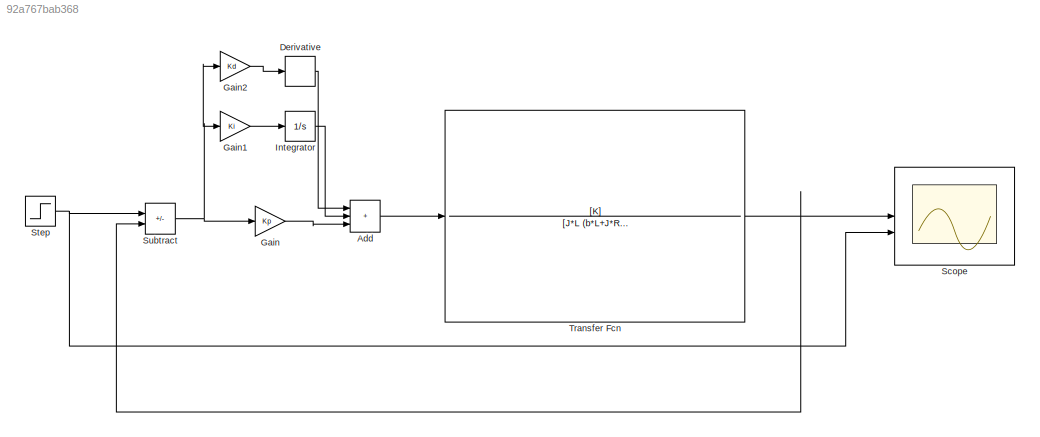
MODEL slx_92a767bab368
KIND model
CONFIG AbsTol = auto
CONFIG EnableMultiTasking = on
CONFIG FixedStep = 0.002
CONFIG MaxStep = auto
CONFIG MinStep = auto
CONFIG RelTol = 1e-3
CONFIG SampleTimeConstraint = Unconstrained
CONFIG SolverName = VariableStepAuto
CONFIG StartTime = 0.0
CONFIG StopTime = 0.35
WORKSPACE source: mxarray member
WORKSPACE J = 3.2284e-06
WORKSPACE K = 0.0274
WORKSPACE Kd = 0.0025
WORKSPACE Ki = 1.68
WORKSPACE Kp = 0.461
WORKSPACE L = 2.75e-06
WORKSPACE R = 4
WORKSPACE b = 3.5077e-06
BLOCK [Sum] Add
  IconShape = rectangular
  Inputs = +++
BLOCK [Derivative] Derivative
BLOCK [Gain] Gain
  Gain = Kp
BLOCK [Gain] Gain1
  Gain = Ki
BLOCK [Gain] Gain2
  Gain = Kd
BLOCK [Integrator] Integrator
BLOCK [Scope] Scope
  Floating = off
  NumInputPorts = 2
  ScopeSpecificationString = Simulink.scopes.TimeScopeBlockCfg('CurrentConfiguration', extmgr.ConfigurationSet(extmgr.Configuration('Core','General UI',true),extmgr.Configuration('Core','Source UI',true),extmgr.Configuration('Sources','WiredSimulink',true),extmgr.Configuration('Visuals','Time Domain',true,'SerializedDisplays',{struct('MinYLimReal','-7.5','MaxYLimReal','67.5','YLabelReal','','MinYLimMag','0.00000','MaxYLimMag'...<+1396ch>
BLOCK [Step] Step
  After = 60
  SampleTime = 0
  Time = 0.01
BLOCK [Sum] Subtract
  IconShape = rectangular
  Inputs = +-
BLOCK [TransferFcn] Transfer Fcn
  Denominator = [J*L (b*L+J*R) (K^2+b*R)]
  Numerator = [K]
LINE Add:1 -> Transfer Fcn:1
LINE Derivative:1 -> Add:1
LINE Gain1:1 -> Integrator:1
LINE Gain2:1 -> Derivative:1
LINE Gain:1 -> Add:3
LINE Integrator:1 -> Add:2
NET Step:1 -> Scope:2, Subtract:1
NET Subtract:1 -> Gain1:1, Gain2:1, Gain:1
NET Transfer Fcn:1 -> Scope:1, Subtract:2
note: NET lines group one-source signal fan-out (src -> all destinations, sorted); 1:1 wires keep LINE
